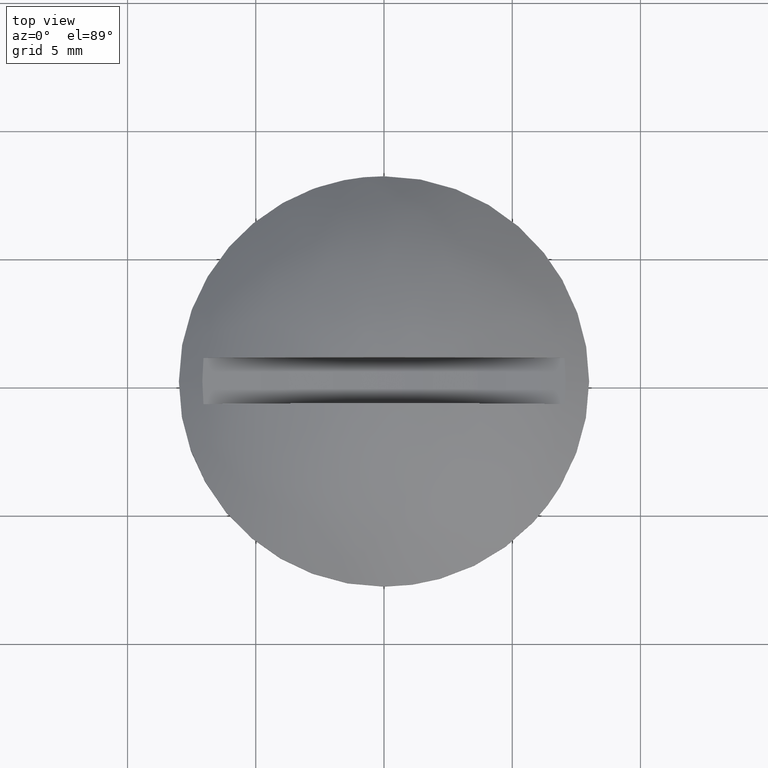
[diagram: clean part render]
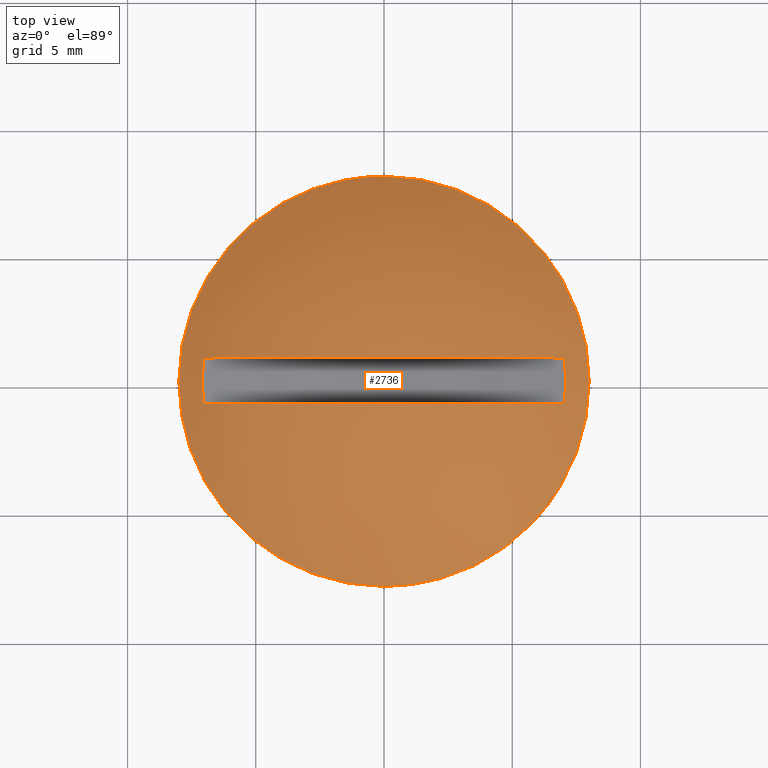
[diagram: same view with one face highlighted and labeled with its STEP entity id]
A machine part, top view. The second image highlights one B-rep face of the part: STEP entity #2736.
In plain terms, the highlighted face is a freeform B-spline surface patch.
Its self-contained STEP definition (entity closure, byte-faithful):
#1454=CARTESIAN_POINT('',(-5.165936351944033,-6.108445203715938,0.500000000000000));
#1455=VERTEX_POINT('',#1454);
#1461=CARTESIAN_POINT('',(-8.0,0.0,0.500000000000000));
#1462=VERTEX_POINT('',#1461);
#1463=CARTESIAN_POINT('',(-5.165936351944033,-6.108445203715938,0.500000000000000));
#1464=CARTESIAN_POINT('',(-5.387063562838057,-5.921440358863571,0.500000000000001));
#1465=CARTESIAN_POINT('',(-5.861732874495738,-5.473635867579834,0.499999999999999));
#1466=CARTESIAN_POINT('',(-6.463909064765177,-4.747460898429938,0.500000000000001));
#1467=CARTESIAN_POINT('',(-7.050976502155865,-3.831901786120137,0.499999999999999));
#1468=CARTESIAN_POINT('',(-7.486621836897646,-2.892916500324058,0.499999999999999));
#1469=CARTESIAN_POINT('',(-7.766204482250902,-1.973586909067738,0.500000000000001));
#1470=CARTESIAN_POINT('',(-7.950432835603229,-1.049794256679991,0.500000000000001));
#1471=CARTESIAN_POINT('',(-8.000027609040282,-0.416302820531211,0.499999999999999));
#1472=CARTESIAN_POINT('',(-8.0,0.0,0.500000000000000));
#1473=B_SPLINE_CURVE_WITH_KNOTS('',3,(#1463,#1464,#1465,#1466,#1467,#1468,#1469,#1470,#1471,#1472),.UNSPECIFIED.,.F.,.U.,(4,1,1,1,1,1,1,4),(4.423715E-010,0.868801929287951,1.954807727808943,2.823611850040495,4.126815078965318,5.049919131483427,5.701521804000084,6.950426361210372),.UNSPECIFIED.);
#1474=EDGE_CURVE('',#1455,#1462,#1473,.T.);
#1476=CARTESIAN_POINT('',(0.000000304003676,7.999999999999994,0.500000000000000));
#1477=VERTEX_POINT('',#1476);
#1478=CARTESIAN_POINT('',(-8.0,0.0,0.500000000000000));
#1479=CARTESIAN_POINT('',(-8.000023271461197,0.392698919234995,0.500000000000000));
#1480=CARTESIAN_POINT('',(-7.954117613452323,1.014463815987429,0.500000000000000));
#1481=CARTESIAN_POINT('',(-7.774526353422551,1.947231943193969,0.499999999999999));
#1482=CARTESIAN_POINT('',(-7.527077399031358,2.762980298747246,0.500000000000000));
#1483=CARTESIAN_POINT('',(-7.186528452649060,3.544122148711927,0.499999999999998));
#1484=CARTESIAN_POINT('',(-6.795269252650705,4.244783409952206,0.500000000000005));
#1485=CARTESIAN_POINT('',(-6.339043579235682,4.905413968553820,0.499999999999997));
#1486=CARTESIAN_POINT('',(-5.857370181317394,5.463798577121719,0.500000000000001));
#1487=CARTESIAN_POINT('',(-5.318405388177680,5.989691042076242,0.499999999999998));
#1488=CARTESIAN_POINT('',(-4.634372044955200,6.551106183293189,0.500000000000010));
#1489=CARTESIAN_POINT('',(-3.851791478445306,7.033313697299684,0.499999999999978));
#1490=CARTESIAN_POINT('',(-3.020502858524552,7.420234697084023,0.500000000000023));
#1491=CARTESIAN_POINT('',(-2.233603976002768,7.701806150556292,0.499999999999987));
#1492=CARTESIAN_POINT('',(-1.194451746236693,7.938508013597480,0.500000000000008));
#1493=CARTESIAN_POINT('',(-0.425425000767818,8.000029595591506,0.499999999999997));
#1494=CARTESIAN_POINT('',(0.000000304003676,7.999999999999994,0.500000000000000));
#1495=B_SPLINE_CURVE_WITH_KNOTS('',3,(#1478,#1479,#1480,#1481,#1482,#1483,#1484,#1485,#1486,#1487,#1488,#1489,#1490,#1491,#1492,#1493,#1494),.UNSPECIFIED.,.F.,.U.,(4,1,1,1,1,1,1,1,1,1,1,1,1,1,4),(3.728967E-009,1.178093419360261,1.865321940608563,2.847072830921219,3.730647338758660,4.417875565001967,5.252362632386559,6.135938946431400,6.626799795318334,7.510377633609964,8.786655827095355,9.375705415557151,10.259279955081411,11.290117198488989,12.566390498688831),.UNSPECIFIED.);
#1496=EDGE_CURVE('',#1462,#1477,#1495,.T.);
#1498=CARTESIAN_POINT('',(8.0,0.0,0.500000000000000));
#1499=VERTEX_POINT('',#1498);
#1500=CARTESIAN_POINT('',(0.000000304003676,7.999999999999994,0.500000000000000));
#1501=CARTESIAN_POINT('',(0.294523139783960,8.000004345310396,0.500000000000000));
#1502=CARTESIAN_POINT('',(0.916296372452059,7.965633099843747,0.500000000000001));
#1503=CARTESIAN_POINT('',(1.772346385315877,7.817089453650858,0.499999999999999));
#1504=CARTESIAN_POINT('',(2.701344420767271,7.550787504483908,0.500000000000003));
#1505=CARTESIAN_POINT('',(3.578252391996494,7.181236935024832,0.499999999999992));
#1506=CARTESIAN_POINT('',(4.482917639296519,6.650252533854857,0.500000000000013));
#1507=CARTESIAN_POINT('',(5.237978033308340,6.072094109615939,0.499999999999997));
#1508=CARTESIAN_POINT('',(5.976910629172799,5.351090821239802,0.500000000000001));
#1509=CARTESIAN_POINT('',(6.607652885042545,4.553026496773214,0.499999999999999));
#1510=CARTESIAN_POINT('',(7.124808272192274,3.678042314052792,0.500000000000002));
#1511=CARTESIAN_POINT('',(7.470128950045587,2.898999278138490,0.499999999999996));
#1512=CARTESIAN_POINT('',(7.701304139318279,2.199203193753005,0.500000000000005));
#1513=CARTESIAN_POINT('',(7.927443918408228,1.259885674829133,0.499999999999994));
#1514=CARTESIAN_POINT('',(8.000077345415589,0.523604673070413,0.500000000000012));
#1515=CARTESIAN_POINT('',(8.0,0.0,0.500000000000000));
#1516=B_SPLINE_CURVE_WITH_KNOTS('',3,(#1500,#1501,#1502,#1503,#1504,#1505,#1506,#1507,#1508,#1509,#1510,#1511,#1512,#1513,#1514,#1515),.UNSPECIFIED.,.F.,.U.,(4,1,1,1,1,1,1,1,1,1,1,1,1,4),(3.775073E-009,0.883570133710228,1.865321889766015,2.601633926034948,3.779735414042277,4.712398436135739,5.743236036417410,6.626799614583730,7.804904276072907,8.786655587450259,9.670230530582296,10.357456129326350,10.995595895650700,12.566390156005269),.UNSPECIFIED.);
#1517=EDGE_CURVE('',#1477,#1499,#1516,.T.);
#1519=CARTESIAN_POINT('',(5.802994909940978,-5.506836556576754,0.500000000000000));
#1520=VERTEX_POINT('',#1519);
#1521=CARTESIAN_POINT('',(8.0,0.0,0.500000000000000));
#1522=CARTESIAN_POINT('',(8.000044664042004,-0.458697636422639,0.499999999999999));
#1523=CARTESIAN_POINT('',(7.935876208221263,-1.202083301770435,0.500000000000003));
#1524=CARTESIAN_POINT('',(7.727007921936964,-2.112981605567191,0.499999999999996));
#1525=CARTESIAN_POINT('',(7.487206704348536,-2.850501706391884,0.500000000000004));
#1526=CARTESIAN_POINT('',(7.186677627237425,-3.549018039594776,0.499999999999999));
#1527=CARTESIAN_POINT('',(6.650310840851772,-4.501095430927691,0.500000000000002));
#1528=CARTESIAN_POINT('',(6.162343112819436,-5.128259745262546,0.499999999999998));
#1529=CARTESIAN_POINT('',(5.802994909940978,-5.506836556576754,0.500000000000000));
#1530=B_SPLINE_CURVE_WITH_KNOTS('',3,(#1521,#1522,#1523,#1524,#1525,#1526,#1527,#1528,#1529),.UNSPECIFIED.,.F.,.U.,(4,1,1,1,1,1,4),(1.494821E-009,1.376084773091114,2.230207096749626,2.799624819653047,3.701192277377757,4.507864754947522,6.073754675979321),.UNSPECIFIED.);
#1531=EDGE_CURVE('',#1499,#1520,#1530,.T.);
#1638=CARTESIAN_POINT('',(-0.000000304003867,-7.999999999999995,0.500000000000000));
#1639=VERTEX_POINT('',#1638);
#1640=CARTESIAN_POINT('',(5.802994909940978,-5.506836556576754,0.500000000000000));
#1641=CARTESIAN_POINT('',(5.500416355137601,-5.825742938403350,0.500000000000001));
#1642=CARTESIAN_POINT('',(4.969001538873997,-6.300415620850892,0.500000000000000));
#1643=CARTESIAN_POINT('',(4.086323566859977,-6.899121525915054,0.500000000000001));
#1644=CARTESIAN_POINT('',(3.123740516175933,-7.398712972345300,0.500000000000000));
#1645=CARTESIAN_POINT('',(2.095055409862429,-7.747074771019005,0.500000000000001));
#1646=CARTESIAN_POINT('',(1.014466629608113,-7.955100041824871,0.499999999999996));
#1647=CARTESIAN_POINT('',(0.371973434356924,-8.000017451255710,0.499999999999999));
#1648=CARTESIAN_POINT('',(-0.000000304003867,-7.999999999999995,0.500000000000000));
#1649=B_SPLINE_CURVE_WITH_KNOTS('',3,(#1640,#1641,#1642,#1643,#1644,#1645,#1646,#1647,#1648),.UNSPECIFIED.,.F.,.U.,(4,1,1,1,1,1,4),(1.284325E-009,1.318816627786127,2.130397453502718,3.195595508501833,4.565134607878331,5.376715433594876,6.492635961468718),.UNSPECIFIED.);
#1650=EDGE_CURVE('',#1520,#1639,#1649,.T.);
#1652=CARTESIAN_POINT('',(-0.000000304003867,-7.999999999999995,0.500000000000000));
#1653=CARTESIAN_POINT('',(-0.511876971560633,-8.000063411441960,0.500000000000001));
#1654=CARTESIAN_POINT('',(-1.316220671200479,-7.922524838412124,0.500000000000002));
#1655=CARTESIAN_POINT('',(-2.324636640917493,-7.668448866197081,0.499999999999998));
#1656=CARTESIAN_POINT('',(-3.151069433584044,-7.370980752865464,0.500000000000004));
#1657=CARTESIAN_POINT('',(-4.112057889848429,-6.900607613003987,0.499999999999991));
#1658=CARTESIAN_POINT('',(-4.797458504903770,-6.420134918469004,0.500000000000007));
#1659=CARTESIAN_POINT('',(-5.165936351944033,-6.108445203715938,0.500000000000000));
#1660=B_SPLINE_CURVE_WITH_KNOTS('',3,(#1652,#1653,#1654,#1655,#1656,#1657,#1658,#1659),.UNSPECIFIED.,.F.,.U.,(4,1,1,1,1,4),(1.753090E-009,1.535615407689865,2.413111553637617,3.115102118943965,4.168098441876587,5.615964387871514),.UNSPECIFIED.);
#1661=EDGE_CURVE('',#1639,#1455,#1660,.T.);
#2566=CARTESIAN_POINT('',(-7.040090653020159,-0.900008999999938,1.157837186402042));
#2567=VERTEX_POINT('',#2566);
#2568=CARTESIAN_POINT('',(7.040090653020159,-0.900008999999938,1.157837186402042));
#2569=VERTEX_POINT('',#2568);
#2583=CARTESIAN_POINT('',(7.040090653020159,-0.900008999999938,1.157837186402042));
#2584=CARTESIAN_POINT('',(6.424091318154642,-0.900008999999938,1.563726677057274));
#2585=CARTESIAN_POINT('',(5.481519956782393,-0.900008999999925,2.073736753143496));
#2586=CARTESIAN_POINT('',(4.123521267117948,-0.900008999999942,2.601841494050925));
#2587=CARTESIAN_POINT('',(3.079691837212290,-0.900008999999902,2.909607842726348));
#2588=CARTESIAN_POINT('',(1.936591727568511,-0.900008999999969,3.138907317875050));
#2589=CARTESIAN_POINT('',(0.641873568806626,-0.900008999999902,3.277923288022540));
#2590=CARTESIAN_POINT('',(-0.622349852521125,-0.900008999999935,3.275037707450634));
#2591=CARTESIAN_POINT('',(-1.955831109201922,-0.900008999999904,3.138012894969938));
#2592=CARTESIAN_POINT('',(-3.061580386363628,-0.900009000000004,2.916202208962495));
#2593=CARTESIAN_POINT('',(-4.252475569054210,-0.900008999999876,2.559180825793637));
#2594=CARTESIAN_POINT('',(-5.552283084391068,-0.900008999999977,2.040017282804667));
#2595=CARTESIAN_POINT('',(-6.505136606228782,-0.900008999999933,1.510305060650765));
#2596=CARTESIAN_POINT('',(-7.040090653020159,-0.900008999999938,1.157837186402042));
#2597=B_SPLINE_CURVE_WITH_KNOTS('',3,(#2583,#2584,#2585,#2586,#2587,#2588,#2589,#2590,#2591,#2592,#2593,#2594,#2595,#2596),.UNSPECIFIED.,.F.,.U.,(4,1,1,1,1,1,1,1,1,1,1,4),(2.998187E-009,2.213086278252037,3.203151579395433,4.367935191386772,5.474479274120153,6.697502390186301,8.269955292163086,9.260018970050517,10.715999517783111,11.647827045822890,12.987326574682450,14.909217708097620),.UNSPECIFIED.);
#2598=EDGE_CURVE('',#2569,#2567,#2597,.T.);
#2608=CARTESIAN_POINT('',(7.040092143945790,0.899993999999985,1.157837467485190));
#2609=VERTEX_POINT('',#2608);
#2610=CARTESIAN_POINT('',(-7.040092143945790,0.899993999999985,1.157837467485190));
#2611=VERTEX_POINT('',#2610);
#2612=CARTESIAN_POINT('',(7.040092143945790,0.899993999999985,1.157837467485190));
#2613=CARTESIAN_POINT('',(6.634815942637080,0.899993999999988,1.424844610646688));
#2614=CARTESIAN_POINT('',(5.827469941368298,0.899993999999983,1.893143221371514));
#2615=CARTESIAN_POINT('',(4.689653934405718,0.899993999999997,2.396380209155836));
#2616=CARTESIAN_POINT('',(3.383799849148461,0.899993999999988,2.840290336334662));
#2617=CARTESIAN_POINT('',(1.844650657970343,0.899993999999996,3.181999126757700));
#2618=CARTESIAN_POINT('',(-0.000201757093516,0.899993999999983,3.312338938396131));
#2619=CARTESIAN_POINT('',(-1.591548572930469,0.899994000000002,3.196235133240083));
#2620=CARTESIAN_POINT('',(-2.947795469908517,0.899993999999993,2.943371701483604));
#2621=CARTESIAN_POINT('',(-3.938534309445363,0.899993999999992,2.661042878985255));
#2622=CARTESIAN_POINT('',(-4.958267652257252,0.899993999999994,2.283045712039161));
#2623=CARTESIAN_POINT('',(-5.946602779889756,0.899993999999982,1.826966933662780));
#2624=CARTESIAN_POINT('',(-6.683447533473753,0.899993999999987,1.392798555805932));
#2625=CARTESIAN_POINT('',(-7.040092143945790,0.899993999999985,1.157837467485190));
#2626=B_SPLINE_CURVE_WITH_KNOTS('',3,(#2612,#2613,#2614,#2615,#2616,#2617,#2618,#2619,#2620,#2621,#2622,#2623,#2624,#2625),.UNSPECIFIED.,.F.,.U.,(4,1,1,1,1,1,1,1,1,1,1,4),(3.012252E-009,1.455978435409598,2.795477439478399,3.727305296967936,5.590960402373581,7.512846456562359,9.260021087902448,10.366566636005709,11.647829709786951,12.346700270526100,13.627963656340521,14.909221117967880),.UNSPECIFIED.);
#2627=EDGE_CURVE('',#2609,#2611,#2626,.T.);
#2660=CARTESIAN_POINT('',(-7.040090653020159,-0.900008999999938,1.157837186402042));
#2661=CARTESIAN_POINT('',(-7.099541709313719,-0.302040126696149,1.169081296360944));
#2662=CARTESIAN_POINT('',(-7.099531029392167,0.302025030480778,1.169079276142002));
#2663=CARTESIAN_POINT('',(-7.040092143945790,0.899993999999985,1.157837467485190));
#2664=B_SPLINE_CURVE_WITH_KNOTS('',3,(#2660,#2661,#2662,#2663),.UNSPECIFIED.,.F.,.U.,(4,4),(5.565393E-011,1.803054510434871),.UNSPECIFIED.);
#2665=EDGE_CURVE('',#2567,#2611,#2664,.T.);
#2668=CARTESIAN_POINT('',(7.040092143945790,0.899993999999985,1.157837467485190));
#2669=CARTESIAN_POINT('',(7.099522467921128,0.302025060899740,1.169077656605275));
#2670=CARTESIAN_POINT('',(7.099550316523549,-0.302040166625259,1.169082923974810));
#2671=CARTESIAN_POINT('',(7.040090653020159,-0.900008999999938,1.157837186402042));
#2672=B_SPLINE_CURVE_WITH_KNOTS('',3,(#2668,#2669,#2670,#2671),.UNSPECIFIED.,.F.,.U.,(4,4),(5.565082E-011,1.803054510463785),.UNSPECIFIED.);
#2673=EDGE_CURVE('',#2609,#2569,#2672,.T.);
#2698=CARTESIAN_POINT('',(-7.618891619198481,-7.618891619198474,-2.566013929013779));
#2699=CARTESIAN_POINT('',(-4.301131364294688,-8.602262728589343,-0.011570904572759));
#2700=CARTESIAN_POINT('',(4.301131364294640,-8.602262728589343,-0.011570904572736));
#2701=CARTESIAN_POINT('',(7.618891619198445,-7.618891619198474,-2.566013929013738));
#2702=CARTESIAN_POINT('',(-8.602262728589350,-4.301131364294678,-0.011570904572762));
#2703=CARTESIAN_POINT('',(-4.938550586357348,-4.938550586357334,3.299998999999977));
#2704=CARTESIAN_POINT('',(4.938550586357282,-4.938550586357334,3.299999000000003));
#2705=CARTESIAN_POINT('',(8.602262728589302,-4.301131364294678,-0.011570904572718));
#2706=CARTESIAN_POINT('',(-8.602262728589350,4.301131364294650,-0.011570904572752));
#2707=CARTESIAN_POINT('',(-4.938550586357347,4.938550586357295,3.299998999999990));
#2708=CARTESIAN_POINT('',(4.938550586357282,4.938550586357295,3.299999000000015));
#2709=CARTESIAN_POINT('',(8.602262728589302,4.301131364294649,-0.011570904572705));
#2710=CARTESIAN_POINT('',(-7.618891619198481,7.618891619198452,-2.566013929013758));
#2711=CARTESIAN_POINT('',(-4.301131364294689,8.602262728589315,-0.011570904572735));
#2712=CARTESIAN_POINT('',(4.301131364294641,8.602262728589315,-0.011570904572712));
#2713=CARTESIAN_POINT('',(7.618891619198444,7.618891619198452,-2.566013929013717));
#2721=(BOUNDED_SURFACE()B_SPLINE_SURFACE(2,2,((#2698,#2702,#2706,#2710),(#2699,#2703,#2707,#2711),(#2700,#2704,#2708,#2712),(#2701,#2705,#2709,#2713)),.UNSPECIFIED.,.F.,.F.,.U.)B_SPLINE_SURFACE_WITH_KNOTS((3,1,3),(3,1,3),(0.0,9.195708222246072,18.391416444492140),(0.0,9.195708222246074,18.391416444492140),.UNSPECIFIED.)GEOMETRIC_REPRESENTATION_ITEM()RATIONAL_B_SPLINE_SURFACE(((1.296396072602715,1.148198036301358,1.148198036301358,1.296396072602715),(1.148198036301358,1.0,1.0,1.148198036301358),(1.148198036301358,1.0,1.0,1.148198036301358),(1.296396072602715,1.148198036301358,1.148198036301358,1.296396072602715)))REPRESENTATION_ITEM('')SURFACE());
#2722=ORIENTED_EDGE('',*,*,#1474,.F.);
#2723=ORIENTED_EDGE('',*,*,#1661,.F.);
#2724=ORIENTED_EDGE('',*,*,#1650,.F.);
#2725=ORIENTED_EDGE('',*,*,#1531,.F.);
#2726=ORIENTED_EDGE('',*,*,#1517,.F.);
#2727=ORIENTED_EDGE('',*,*,#1496,.F.);
#2728=EDGE_LOOP('',(#2722,#2723,#2724,#2725,#2726,#2727));
#2729=FACE_OUTER_BOUND('',#2728,.T.);
#2730=ORIENTED_EDGE('',*,*,#2627,.F.);
#2731=ORIENTED_EDGE('',*,*,#2673,.T.);
#2732=ORIENTED_EDGE('',*,*,#2598,.T.);
#2733=ORIENTED_EDGE('',*,*,#2665,.T.);
#2734=EDGE_LOOP('',(#2730,#2731,#2732,#2733));
#2735=FACE_BOUND('',#2734,.T.);
#2736=ADVANCED_FACE('',(#2729,#2735),#2721,.T.);